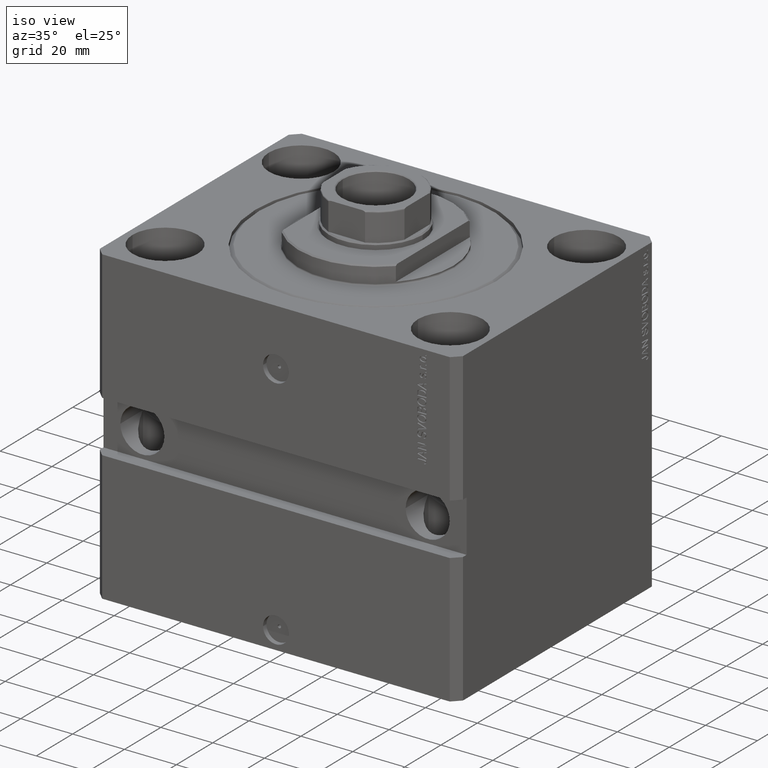
[diagram: clean part render]
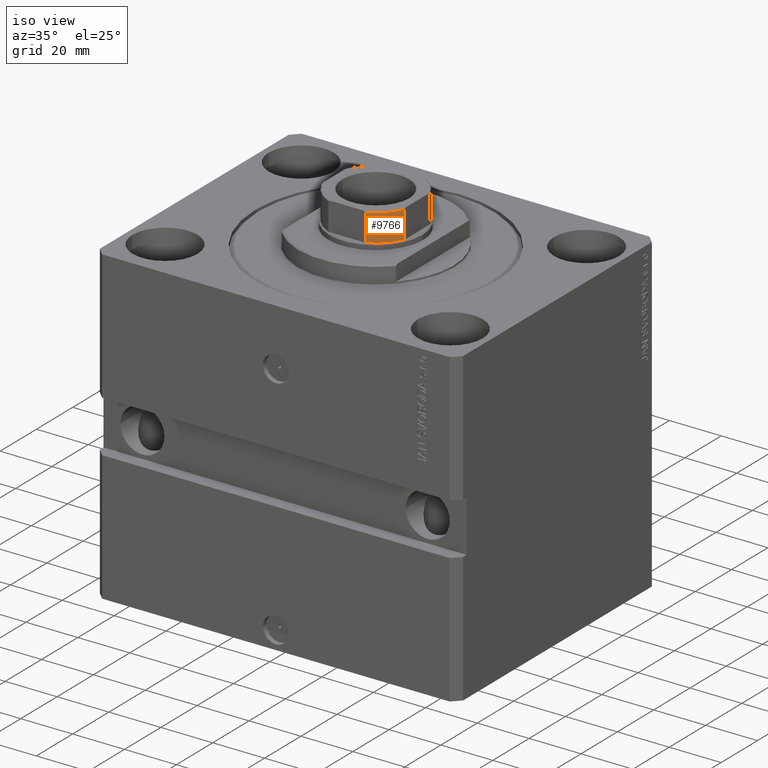
[diagram: same view with one face highlighted and labeled with its STEP entity id]
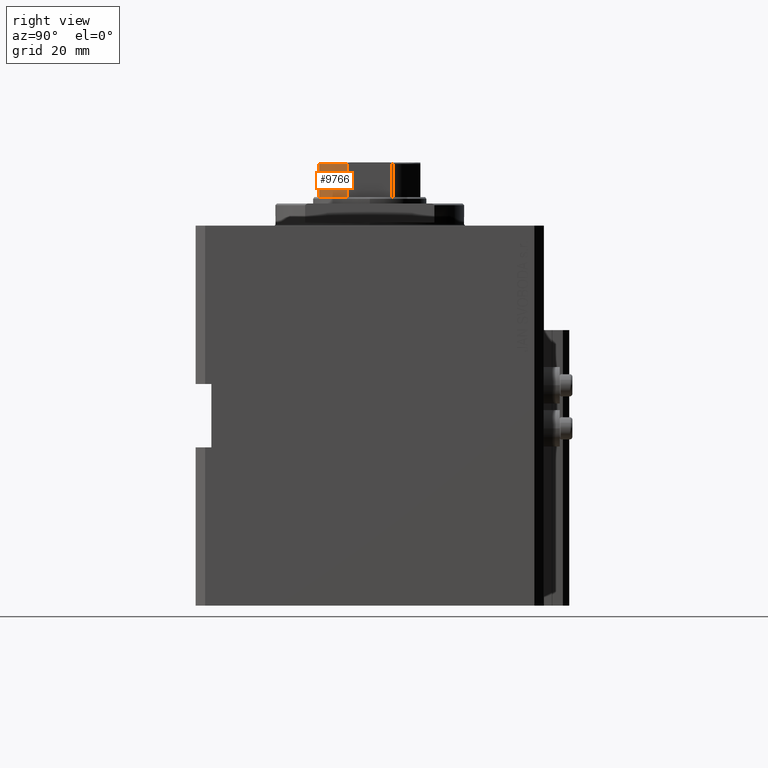
[diagram: same view with one face highlighted and labeled with its STEP entity id]
A machine part, iso view. The second image highlights one B-rep face of the part: STEP entity #9766.
A second angle (right view) of the same face is appended — the face is thin or edge-on in the first view.
In plain terms, the highlighted cylindrical surface (partial cylindrical patch) has radius 17.5 mm, axis along (0, 0, 1).
Its self-contained STEP definition (entity closure, byte-faithful):
#597 = AXIS2_PLACEMENT_3D ( 'NONE', #37608, #38106, #7038 ) ;
#1897 = CARTESIAN_POINT ( 'NONE',  ( 7.088723439378916247, -16.00000000000000000, -0.001000000000001000089 ) ) ;
#2384 = DIRECTION ( 'NONE',  ( -0.000000000000000000, -0.000000000000000000, 1.000000000000000000 ) ) ;
#3417 = DIRECTION ( 'NONE',  ( 1.000000000000000000, 0.000000000000000000, 0.000000000000000000 ) ) ;
#4008 = EDGE_CURVE ( 'NONE', #37988, #33860, #44675, .T. ) ;
#4557 = CIRCLE ( 'NONE', #597, 17.50000000000001421 ) ;
#4804 = EDGE_CURVE ( 'NONE', #22674, #6637, #4557, .T. ) ;
#6229 = DIRECTION ( 'NONE',  ( 0.000000000000000000, -0.000000000000000000, -1.000000000000000000 ) ) ;
#6637 = VERTEX_POINT ( 'NONE', #7306 ) ;
#7038 = DIRECTION ( 'NONE',  ( 1.000000000000000000, 0.000000000000000000, 0.000000000000000000 ) ) ;
#7306 = CARTESIAN_POINT ( 'NONE',  ( 15.99999999999999645, -7.088723439378925129, 104.0000000000000284 ) ) ;
#8826 = ORIENTED_EDGE ( 'NONE', *, *, #4008, .T. ) ;
#9558 = CARTESIAN_POINT ( 'NONE',  ( 15.99999999999999645, -7.088723439378925129, -0.001000000000001000089 ) ) ;
#9766 = ADVANCED_FACE ( 'NONE', ( #26106 ), #33262, .T. ) ;
#11401 = EDGE_LOOP ( 'NONE', ( #14013, #8826, #13704, #38749 ) ) ;
#11712 = AXIS2_PLACEMENT_3D ( 'NONE', #28677, #6229, #24739 ) ;
#12516 = LINE ( 'NONE', #1897, #28591 ) ;
#12757 = DIRECTION ( 'NONE',  ( -0.000000000000000000, -0.000000000000000000, 1.000000000000000000 ) ) ;
#13704 = ORIENTED_EDGE ( 'NONE', *, *, #45099, .F. ) ;
#14013 = ORIENTED_EDGE ( 'NONE', *, *, #42516, .T. ) ;
#14510 = CARTESIAN_POINT ( 'NONE',  ( 0.000000000000000000, 0.000000000000000000, -0.001000000000001000089 ) ) ;
#18607 = CARTESIAN_POINT ( 'NONE',  ( 7.088723439378916247, -16.00000000000000000, 114.5000000000000000 ) ) ;
#19440 = CARTESIAN_POINT ( 'NONE',  ( 7.088723439378916247, -16.00000000000000000, 104.0000000000000284 ) ) ;
#22674 = VERTEX_POINT ( 'NONE', #19440 ) ;
#24739 = DIRECTION ( 'NONE',  ( 1.000000000000000000, 0.000000000000000000, 0.000000000000000000 ) ) ;
#26106 = FACE_OUTER_BOUND ( 'NONE', #11401, .T. ) ;
#28591 = VECTOR ( 'NONE', #12757, 1000.000000000000000 ) ;
#28677 = CARTESIAN_POINT ( 'NONE',  ( 0.000000000000000000, 0.000000000000000000, 114.5000000000000000 ) ) ;
#30587 = CARTESIAN_POINT ( 'NONE',  ( 15.99999999999999645, -7.088723439378925129, 114.5000000000000000 ) ) ;
#33262 = CYLINDRICAL_SURFACE ( 'NONE', #47981, 17.50000000000000000 ) ;
#33860 = VERTEX_POINT ( 'NONE', #18607 ) ;
#37608 = CARTESIAN_POINT ( 'NONE',  ( 0.000000000000000000, 0.000000000000000000, 104.0000000000000142 ) ) ;
#37988 = VERTEX_POINT ( 'NONE', #30587 ) ;
#38106 = DIRECTION ( 'NONE',  ( 0.000000000000000000, 0.000000000000000000, 1.000000000000000000 ) ) ;
#38749 = ORIENTED_EDGE ( 'NONE', *, *, #4804, .T. ) ;
#42516 = EDGE_CURVE ( 'NONE', #6637, #37988, #43344, .T. ) ;
#42722 = VECTOR ( 'NONE', #2384, 1000.000000000000000 ) ;
#43344 = LINE ( 'NONE', #9558, #42722 ) ;
#44602 = DIRECTION ( 'NONE',  ( -0.000000000000000000, -0.000000000000000000, 1.000000000000000000 ) ) ;
#44675 = CIRCLE ( 'NONE', #11712, 17.50000000000000000 ) ;
#45099 = EDGE_CURVE ( 'NONE', #22674, #33860, #12516, .T. ) ;
#47981 = AXIS2_PLACEMENT_3D ( 'NONE', #14510, #44602, #3417 ) ;